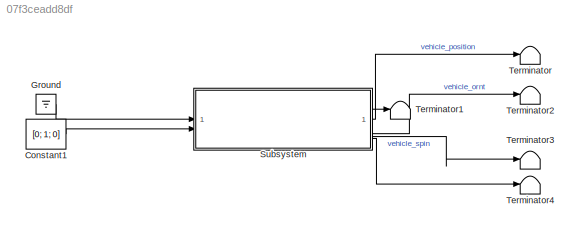
MODEL slx_07f3ceadd8df
KIND model
CONFIG AbsTol = auto
CONFIG EnableMultiTasking = off
CONFIG FixedStep = auto
CONFIG MaxStep = auto
CONFIG MinStep = auto
CONFIG RelTol = 1e-5
CONFIG SampleTimeConstraint = Unconstrained
CONFIG SolverName = VariableStepAuto
CONFIG StartTime = 0.0
CONFIG StopTime = t_f
BLOCK [Constant] Constant1
  Value = [0; 1; 0]
  VectorParams1D = off
BLOCK [Ground] Ground
BLOCK [SubSystem] Subsystem
  ReferencedSubsystem = rigid_body_sixdof
  inertia = inertia
  mass = 1
  ornt_0 = vehicle_ornt_0
  pos_0 = [0; 0; 0]
  spin_0 = vehicle_spin_0
  vel_0 = [0; 0; 0]
BLOCK [Terminator] Terminator
BLOCK [Terminator] Terminator1
BLOCK [Terminator] Terminator2
BLOCK [Terminator] Terminator3
BLOCK [Terminator] Terminator4
LINE Constant1:1 -> Subsystem:2
LINE Ground:1 -> Subsystem:1
LINE Subsystem:1 -> Terminator:1
LINE Subsystem:2 -> Terminator1:1
LINE Subsystem:3 -> Terminator2:1
LINE Subsystem:4 -> Terminator3:1
LINE Subsystem:5 -> Terminator4:1
